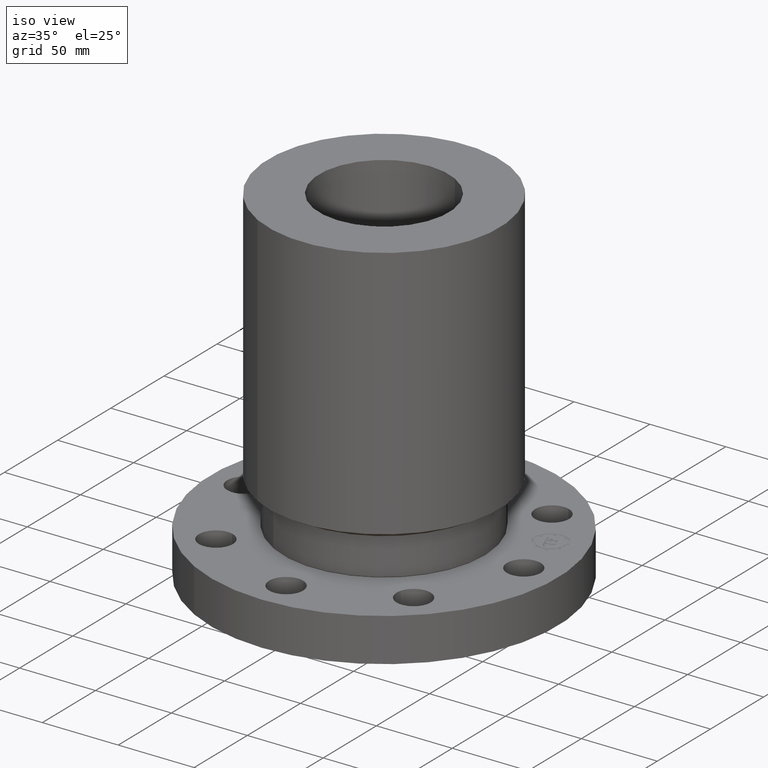
[diagram: clean part render]
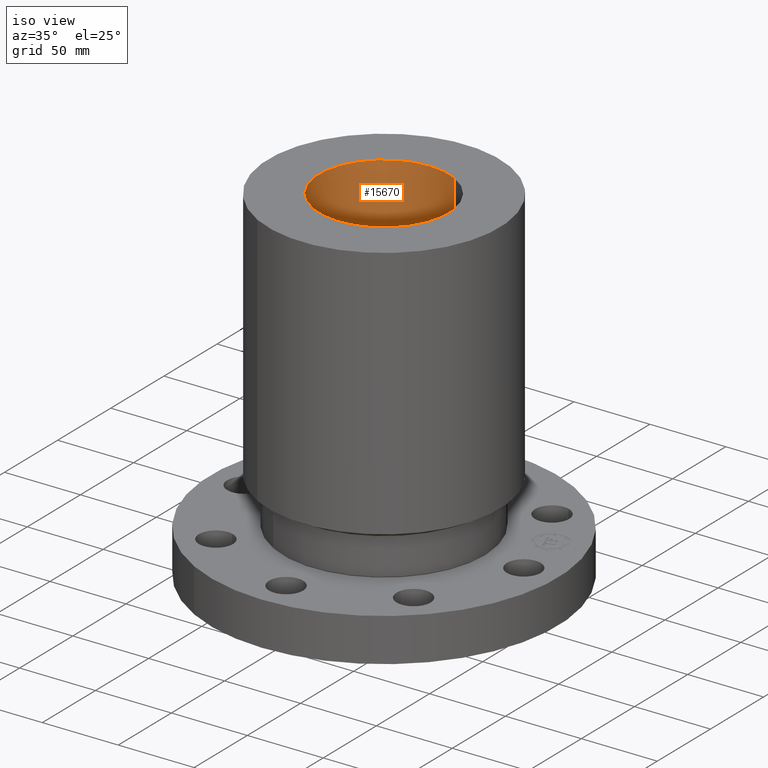
[diagram: same view with one face highlighted and labeled with its STEP entity id]
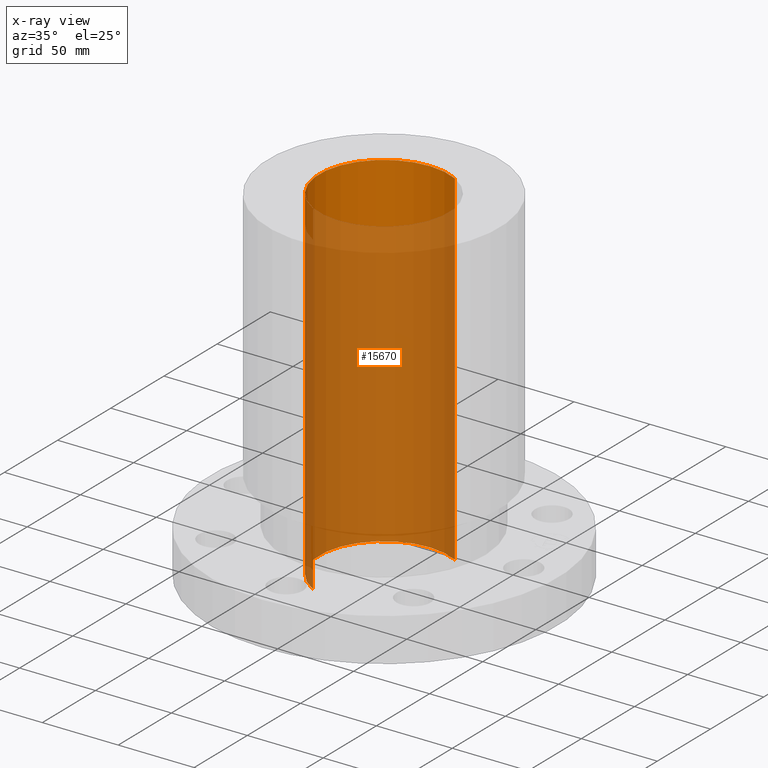
[diagram: x-ray of the same camera — body ghosted, the highlighted face saturated]
A machine part, iso view. The second image highlights one B-rep face of the part: STEP entity #15670.
The next image is the same camera in x-ray: the body ghosted, the highlighted face saturated — about 85% of this face is hidden behind the body in this view.
In plain terms, the highlighted cylindrical surface (partial cylindrical patch) has radius 42.672 mm, axis along (0, 0, -1).
Its self-contained STEP definition (entity closure, byte-faithful):
#15193=AXIS2_PLACEMENT_3D('Circle Axis2P3D',#15191,#15192,$) ;
#15631=AXIS2_PLACEMENT_3D('Cylinder Axis2P3D',#15628,#15629,#15630) ;
#15661=AXIS2_PLACEMENT_3D('Circle Axis2P3D',#15659,#15660,$) ;
#15191=CARTESIAN_POINT('Axis2P3D Location',(0.,0.,8.93750000004)) ;
#15195=CARTESIAN_POINT('Vertex',(-0.805434904858,-1.47433870398,8.93750000004)) ;
#15197=CARTESIAN_POINT('Vertex',(0.805434904858,1.47433870398,8.93750000004)) ;
#15628=CARTESIAN_POINT('Axis2P3D Location',(0.,0.,4.43750000002)) ;
#15637=CARTESIAN_POINT('Vertex',(-0.805434904858,-1.47433870398,0.)) ;
#15639=CARTESIAN_POINT('Vertex',(0.805434904858,1.47433870398,0.)) ;
#15642=CARTESIAN_POINT('Line Origine',(-0.805434904858,-1.47433870398,4.46875000002)) ;
#15647=CARTESIAN_POINT('Line Origine',(0.805434904858,1.47433870398,4.46875000002)) ;
#15659=CARTESIAN_POINT('Axis2P3D Location',(0.,0.,0.)) ;
#15192=DIRECTION('Axis2P3D Direction',(0.,0.,-0.0393700787402)) ;
#15629=DIRECTION('Axis2P3D Direction',(0.,0.,-0.0393700787402)) ;
#15630=DIRECTION('Axis2P3D XDirection',(-0.0188750212049,-0.0345504945626,0.)) ;
#15643=DIRECTION('Vector Direction',(0.,0.,-0.0393700787402)) ;
#15648=DIRECTION('Vector Direction',(0.,0.,-0.0393700787402)) ;
#15660=DIRECTION('Axis2P3D Direction',(0.,0.,-0.0393700787402)) ;
#15644=VECTOR('Line Direction',#15643,0.0393700787402) ;
#15649=VECTOR('Line Direction',#15648,0.0393700787402) ;
#15665=ORIENTED_EDGE('',*,*,#15663,.F.) ;
#15666=ORIENTED_EDGE('',*,*,#15651,.F.) ;
#15667=ORIENTED_EDGE('',*,*,#15199,.F.) ;
#15668=ORIENTED_EDGE('',*,*,#15646,.T.) ;
#15670=ADVANCED_FACE('PartBody',(#15669),#15632,.F.) ;
#15194=CIRCLE('generated circle',#15193,1.68000000001) ;
#15662=CIRCLE('generated circle',#15661,1.68000000001) ;
#15632=CYLINDRICAL_SURFACE('generated cylinder',#15631,1.68000000001) ;
#15199=EDGE_CURVE('',#15196,#15198,#15194,.T.) ;
#15646=EDGE_CURVE('',#15196,#15638,#15645,.T.) ;
#15651=EDGE_CURVE('',#15198,#15640,#15650,.T.) ;
#15663=EDGE_CURVE('',#15640,#15638,#15662,.F.) ;
#15664=EDGE_LOOP('',(#15665,#15666,#15667,#15668)) ;
#15669=FACE_OUTER_BOUND('',#15664,.T.) ;
#15645=LINE('Line',#15642,#15644) ;
#15650=LINE('Line',#15647,#15649) ;
#15196=VERTEX_POINT('',#15195) ;
#15198=VERTEX_POINT('',#15197) ;
#15638=VERTEX_POINT('',#15637) ;
#15640=VERTEX_POINT('',#15639) ;